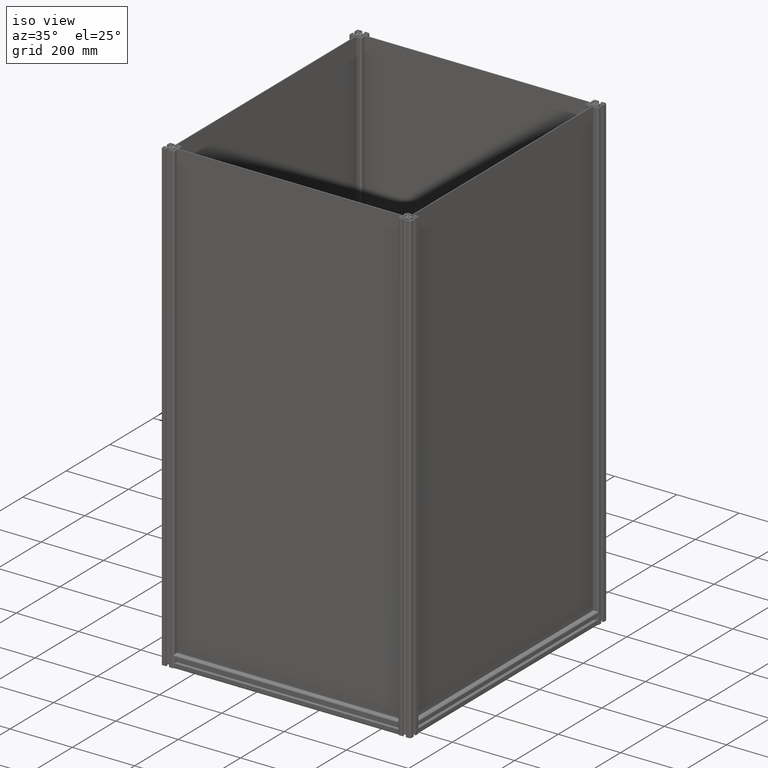
[diagram: clean part render]
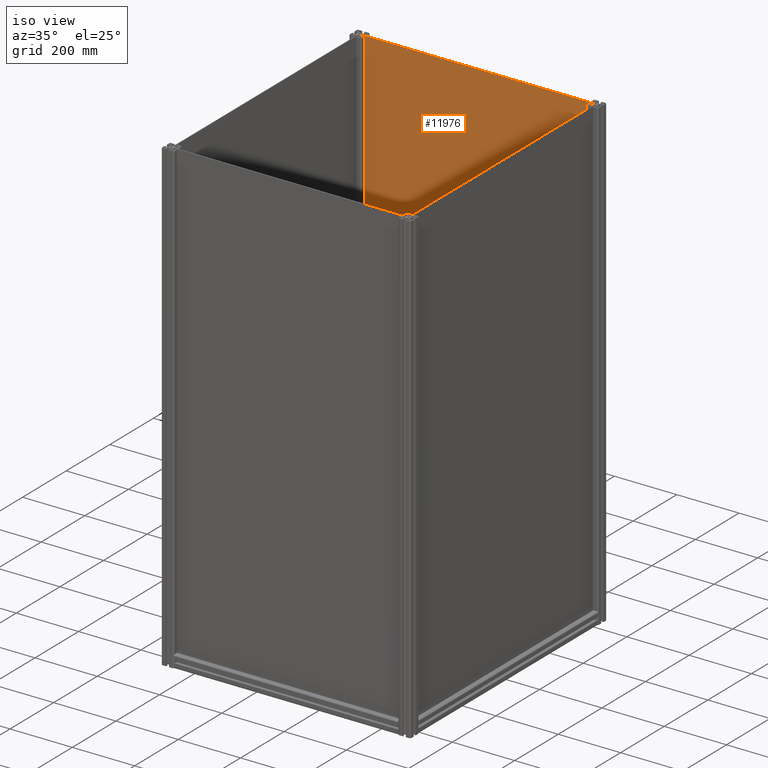
[diagram: same view with one face highlighted and labeled with its STEP entity id]
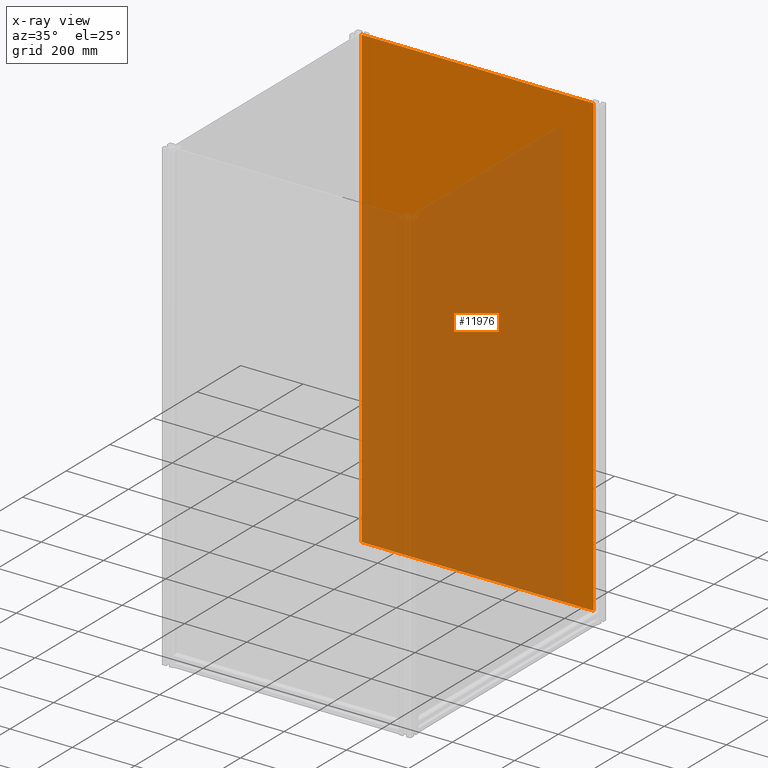
[diagram: x-ray of the same camera — body ghosted, the highlighted face saturated]
A machine part, iso view. The second image highlights one B-rep face of the part: STEP entity #11976.
The next image is the same camera in x-ray: the body ghosted, the highlighted face saturated — about 68% of this face is hidden behind the body in this view.
In plain terms, the highlighted planar face has unit normal (0, 1, 0).
Its self-contained STEP definition (entity closure, byte-faithful):
#192 = PLANE ( 'NONE',  #12726 ) ;
#1091 = CARTESIAN_POINT ( 'NONE',  ( -600.7269624573378906, 257.8730375426625301, -2.000000000000000000 ) ) ;
#1521 = ORIENTED_EDGE ( 'NONE', *, *, #6502, .F. ) ;
#1592 = ORIENTED_EDGE ( 'NONE', *, *, #6194, .T. ) ;
#2393 = DIRECTION ( 'NONE',  ( -1.000000000000000000, 0.000000000000000000, 0.000000000000000000 ) ) ;
#3443 = DIRECTION ( 'NONE',  ( -1.000000000000000000, 0.000000000000000000, 0.000000000000000000 ) ) ;
#3491 = LINE ( 'NONE', #8691, #14602 ) ;
#3789 = CARTESIAN_POINT ( 'NONE',  ( -28.32696245733845686, -1214.526962457337504, -2.000000000000000000 ) ) ;
#3914 = VECTOR ( 'NONE', #4998, 1000.000000000000000 ) ;
#4016 = DIRECTION ( 'NONE',  ( 0.000000000000000000, 0.000000000000000000, 1.000000000000000000 ) ) ;
#4301 = VERTEX_POINT ( 'NONE', #3789 ) ;
#4860 = VECTOR ( 'NONE', #6814, 1000.000000000000000 ) ;
#4998 = DIRECTION ( 'NONE',  ( 1.508045401555496405E-16, 1.000000000000000000, -0.000000000000000000 ) ) ;
#6194 = EDGE_CURVE ( 'NONE', #13238, #10604, #15321, .T. ) ;
#6343 = VERTEX_POINT ( 'NONE', #12997 ) ;
#6502 = EDGE_CURVE ( 'NONE', #4301, #6343, #9994, .T. ) ;
#6750 = VECTOR ( 'NONE', #3443, 1000.000000000000000 ) ;
#6814 = DIRECTION ( 'NONE',  ( -1.117974313196651756E-16, 1.000000000000000000, 0.000000000000000000 ) ) ;
#6919 = LINE ( 'NONE', #1091, #6750 ) ;
#7178 = CARTESIAN_POINT ( 'NONE',  ( -773.1269624573380952, 257.8730375426625301, -2.000000000000000000 ) ) ;
#7442 = ORIENTED_EDGE ( 'NONE', *, *, #9760, .F. ) ;
#7487 = ORIENTED_EDGE ( 'NONE', *, *, #14082, .T. ) ;
#8691 = CARTESIAN_POINT ( 'NONE',  ( -28.32696245733845686, -1214.526962457337504, -2.000000000000000000 ) ) ;
#9141 = DIRECTION ( 'NONE',  ( 1.000000000000000000, 0.000000000000000000, 0.000000000000000000 ) ) ;
#9760 = EDGE_CURVE ( 'NONE', #6343, #10604, #6919, .T. ) ;
#9948 = EDGE_LOOP ( 'NONE', ( #1592, #7442, #1521, #7487 ) ) ;
#9994 = LINE ( 'NONE', #10221, #4860 ) ;
#10221 = CARTESIAN_POINT ( 'NONE',  ( -28.32696245733819751, 257.8730375426625301, -2.000000000000000000 ) ) ;
#10604 = VERTEX_POINT ( 'NONE', #12556 ) ;
#10699 = CARTESIAN_POINT ( 'NONE',  ( -773.1269624573383226, -1214.526962457337504, -2.000000000000000000 ) ) ;
#11255 = FACE_OUTER_BOUND ( 'NONE', #9948, .T. ) ;
#11923 = CARTESIAN_POINT ( 'NONE',  ( 0.000000000000000000, 0.000000000000000000, -2.000000000000000000 ) ) ;
#11976 = ADVANCED_FACE ( 'NONE', ( #11255 ), #192, .F. ) ;
#12556 = CARTESIAN_POINT ( 'NONE',  ( -773.1269624573380952, 257.8730375426625301, -2.000000000000000000 ) ) ;
#12726 = AXIS2_PLACEMENT_3D ( 'NONE', #11923, #4016, #9141 ) ;
#12997 = CARTESIAN_POINT ( 'NONE',  ( -28.32696245733819751, 257.8730375426625301, -2.000000000000000000 ) ) ;
#13238 = VERTEX_POINT ( 'NONE', #10699 ) ;
#14082 = EDGE_CURVE ( 'NONE', #4301, #13238, #3491, .T. ) ;
#14602 = VECTOR ( 'NONE', #2393, 1000.000000000000000 ) ;
#15321 = LINE ( 'NONE', #7178, #3914 ) ;